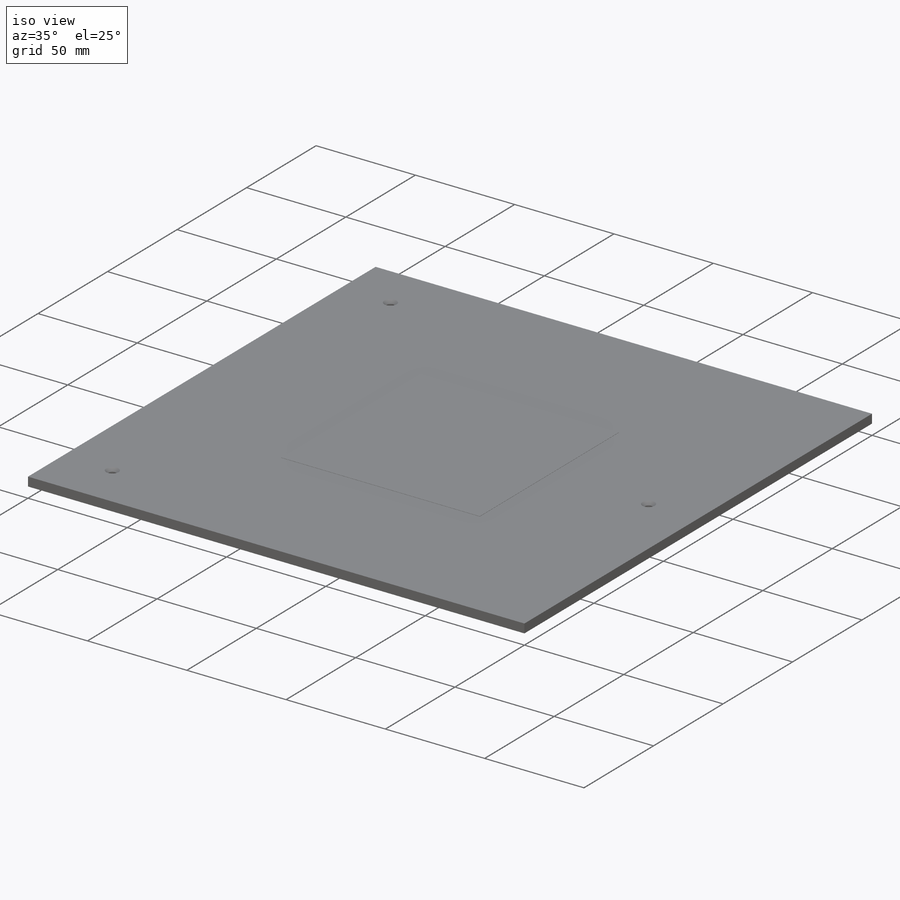
[diagram: iso view]
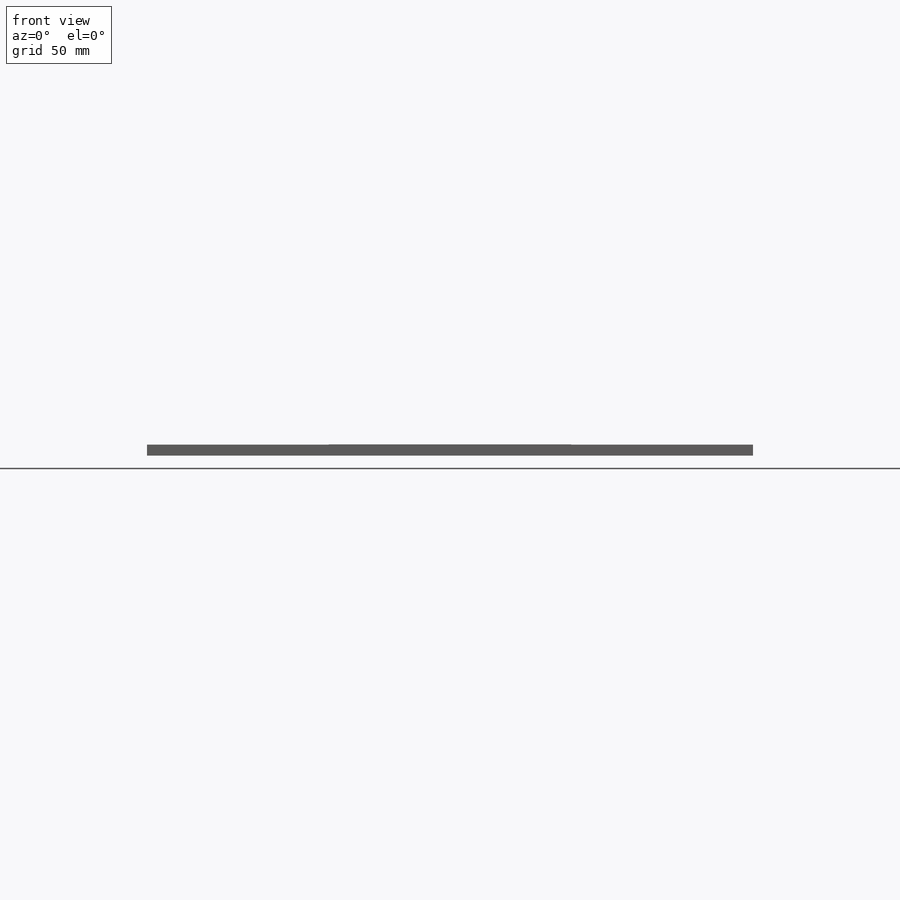
[diagram: front view]
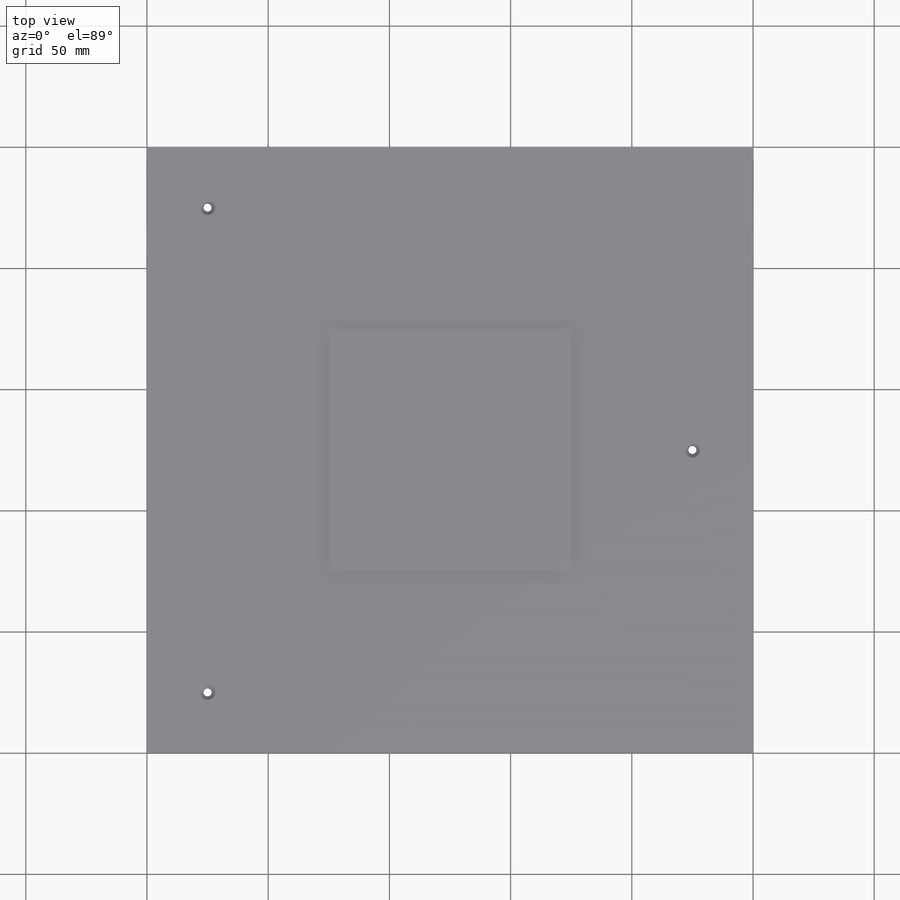
[diagram: top view]
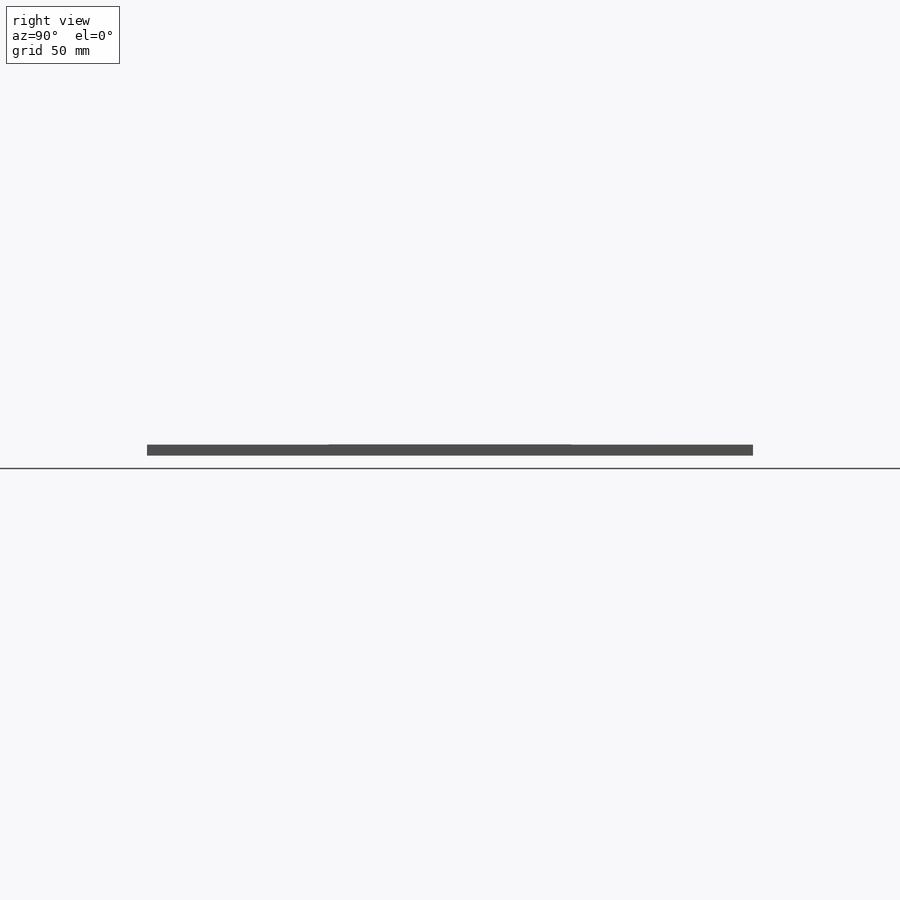
[diagram: right view]
SOLIDWORKS PART (.sldprt)
format: sldprt  version: not decoded by parser v0  size: 398,336 bytes
history: native  units: mm
features: sketch x4, extrude x2, material x1, hole x1 (+11 scaffold rows collapsed)
feature tree (19):
  scaffold x11  (default folders/planes/origin — collapsed)
  material  "6061 Alloy"
  sketch  "Sketch1"  dims[c1.D1=~39.926482mm c1.D2=~44.122959mm c2.D1=250.0mm c2.D2=250.0mm]
  extrude  "Boss-Extrude2"  Depth=4.5mm
  hole  "CSK for M3 Flat Head Machine Screw1"  Diameter=3.4mm Depth=4.5mm
  sketch  "Sketch4"  dims[D1=25.0mm D2=100.0mm D3=100.0mm D4=25.0mm D5=25.0mm]
  sketch  "Sketch3"  dims[hole-wizard template sketch: 55 standard entries collapsed; hole parameters kept: c17.Thru Hole Depth=4.5mm c17.Near C'Sink Dia.=6.3mm c17.D4=~3.666174mm c17.Near C'Sink Angle=90.0deg]
  sketch  "Sketch5"  dims[c1.D1=~105.522199mm c1.D2=~113.100732mm c2.D1=75.0mm c2.D2=75.0mm c2.D3=75.0mm c2.D4=75.0mm]
  extrude  "Boss-Extrude3"  Depth=0.1mm
decode coverage: 7 of 7 modeling features carry decoded parameters
note: ~ marks probable driven/reference dimensions
note: suppression state not decoded; provenance and decode notes live in map.json
